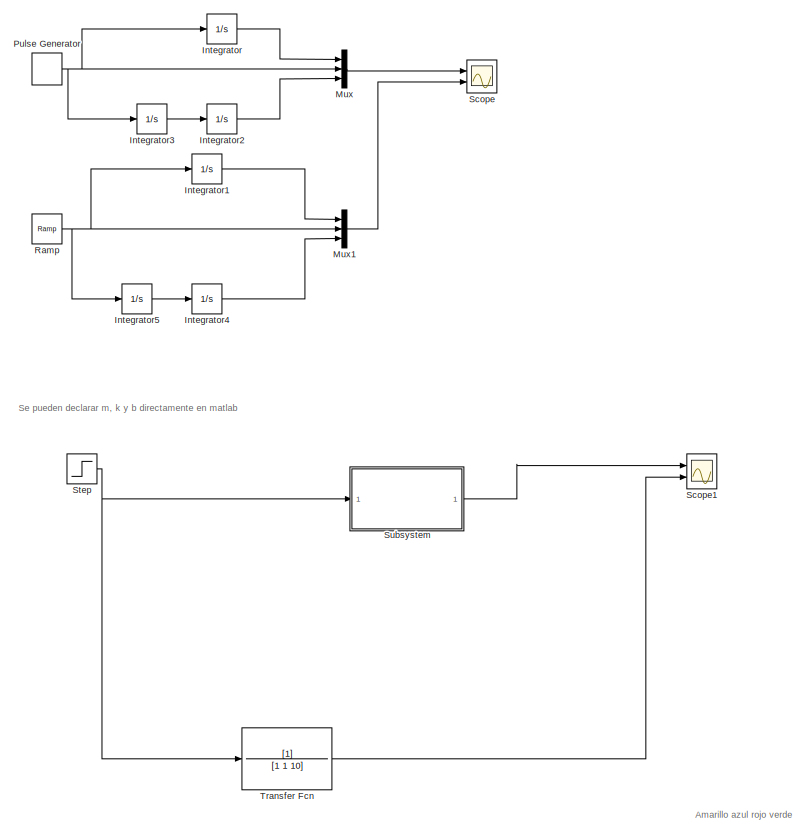
[diagram: root canvas - part 1/2, full width, top band]
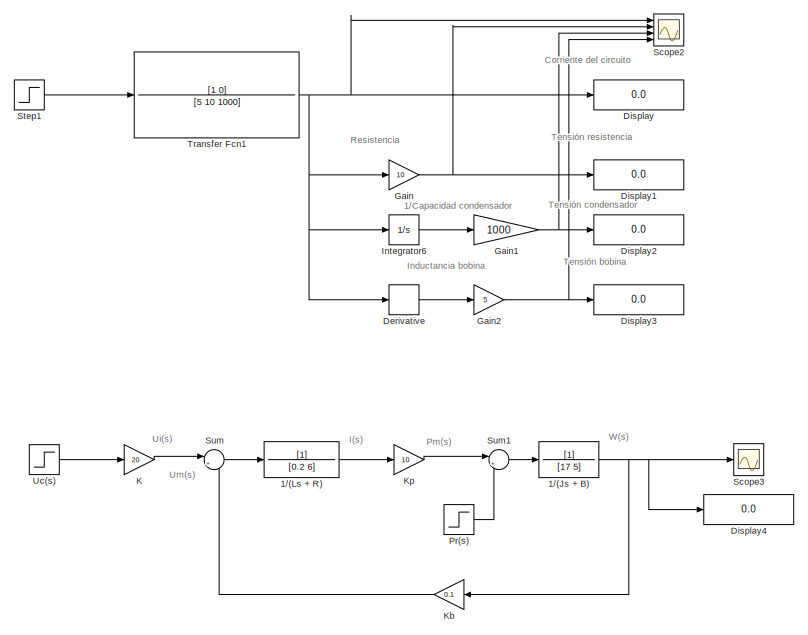
[diagram: root canvas - part 2/2, full width, bottom band]
MODEL slx_71926e811fb0
KIND model
CONFIG AbsTol = auto
CONFIG EnableMultiTasking = off
CONFIG FixedStep = 0.01
CONFIG MaxStep = auto
CONFIG MinStep = auto
CONFIG RelTol = 1e-3
CONFIG SampleTimeConstraint = Unconstrained
CONFIG SolverName = FixedStepAuto
CONFIG StartTime = 0.0
CONFIG StopTime = 50.0
BLOCK [TransferFcn] 1//(Js + B)
  Denominator = [17 5]
BLOCK [TransferFcn] 1//(Ls + R)
  Denominator = [0.2 6]
BLOCK [Derivative] Derivative
BLOCK [Display] Display
  Decimation = 1
  Ports = [1]
BLOCK [Display] Display1
  Decimation = 1
  Ports = [1]
BLOCK [Display] Display2
  Decimation = 1
  Ports = [1]
BLOCK [Display] Display3
  Decimation = 1
  Ports = [1]
BLOCK [Display] Display4
  Decimation = 1
  Ports = [1]
BLOCK [Gain] Gain
  Gain = 10
BLOCK [Gain] Gain1
  Gain = 1000
BLOCK [Gain] Gain2
  Gain = 5
BLOCK [Integrator] Integrator
  Ports = [1, 1]
BLOCK [Integrator] Integrator1
  Ports = [1, 1]
BLOCK [Integrator] Integrator2
  Ports = [1, 1]
BLOCK [Integrator] Integrator3
  Ports = [1, 1]
BLOCK [Integrator] Integrator4
  Ports = [1, 1]
BLOCK [Integrator] Integrator5
  Ports = [1, 1]
BLOCK [Integrator] Integrator6
  Ports = [1, 1]
BLOCK [Gain] K
  Gain = 20
BLOCK [Gain] Kb
  Gain = 0.1
  NameLocation = top
BLOCK [Gain] Kp
  Gain = 10
BLOCK [Mux] Mux
  DisplayOption = bar
  Inputs = 3
  Ports = [3, 1]
BLOCK [Mux] Mux1
  DisplayOption = bar
  Inputs = 3
  Ports = [3, 1]
BLOCK [Step] Pr(s)
  After = 120
  SampleTime = 0
  Time = 20
BLOCK [DiscretePulseGenerator] Pulse Generator
  Period = 10
  Ports = [0, 1]
  PulseType = Time based
  PulseWidth = 5
BLOCK [Reference] Ramp  REF=simulink/Sources/Ramp
  Ports = [0, 1]
  SourceBlock = simulink/Sources/Ramp
  SourceProductBaseCode = SL
  SourceType = Ramp
BLOCK [Scope] Scope
  Floating = off
  NumInputPorts = 2
  Ports = [2]
  ScopeSpecificationString = Simulink.scopes.TimeScopeBlockCfg('CurrentConfiguration', extmgr.ConfigurationSet(extmgr.Configuration('Core','General UI',true),extmgr.Configuration('Core','Source UI',true),extmgr.Configuration('Sources','WiredSimulink',true),extmgr.Configuration('Visuals','Time Domain',true,'SerializedDisplays',{struct('MinYLimReal','-6.86529','MaxYLimReal','28.62052','YLabelReal','','MinYLimMag','0.00000','Max...<+1476ch>
BLOCK [Scope] Scope1
  Floating = off
  NumInputPorts = 2
  Ports = [2]
  ScopeSpecificationString = Simulink.scopes.TimeScopeBlockCfg('CurrentConfiguration', extmgr.ConfigurationSet(extmgr.Configuration('Core','General UI',true),extmgr.Configuration('Core','Source UI',true),extmgr.Configuration('Sources','WiredSimulink',true,'DataLoggingVariableName','ScopeData1'),extmgr.Configuration('Visuals','Time Domain',true,'SerializedDisplays',{struct('MinYLimReal','-0.01999','MaxYLimReal','0.17994','YLab...<+1509ch>
BLOCK [Scope] Scope2
  Floating = off
  NumInputPorts = 4
  Ports = [4]
  ScopeSpecificationString = Simulink.scopes.TimeScopeBlockCfg('CurrentConfiguration', extmgr.ConfigurationSet(extmgr.Configuration('Core','General UI',true),extmgr.Configuration('Core','Source UI',true),extmgr.Configuration('Sources','WiredSimulink',true,'DataLoggingVariableName','ScopeData2'),extmgr.Configuration('Visuals','Time Domain',true,'SerializedDisplays',{struct('MinYLimReal','-1.13283','MaxYLimReal','2.12528','YLab...<+1449ch>
BLOCK [Scope] Scope3
  Floating = off
  NumInputPorts = 1
  Ports = [1]
  ScopeSpecificationString = Simulink.scopes.TimeScopeBlockCfg('CurrentConfiguration', extmgr.ConfigurationSet(extmgr.Configuration('Core','General UI',true),extmgr.Configuration('Core','Source UI',true),extmgr.Configuration('Sources','WiredSimulink',true,'DataLoggingVariableName','ScopeData3'),extmgr.Configuration('Visuals','Time Domain',true,'SerializedDisplays',{struct('MinYLimReal','-16.09176','MaxYLimReal','144.82588','Y...<+1434ch>
BLOCK [Step] Step
  SampleTime = 0
  Time = 0
BLOCK [Step] Step1
  SampleTime = 0
  Time = 0
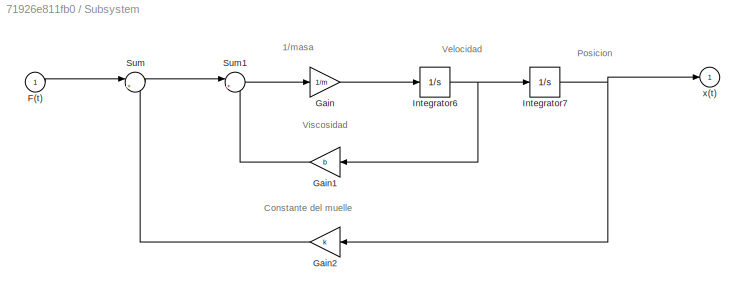
BLOCK [SubSystem] Subsystem
  Ports = [1, 1]
  RequestExecContextInheritance = off
BLOCK [Inport] Subsystem/F(t)
  IconDisplay = Signal name
BLOCK [Gain] Subsystem/Gain
  Gain = 1/m
BLOCK [Gain] Subsystem/Gain1
  Gain = b
BLOCK [Gain] Subsystem/Gain2
  Gain = k
BLOCK [Integrator] Subsystem/Integrator6
  Ports = [1, 1]
BLOCK [Integrator] Subsystem/Integrator7
  Ports = [1, 1]
BLOCK [Sum] Subsystem/Sum
  Inputs = |+-
  Ports = [2, 1]
BLOCK [Sum] Subsystem/Sum1
  Inputs = |+-
  Ports = [2, 1]
BLOCK [Outport] Subsystem/x(t)
  IconDisplay = Signal name
BLOCK [Sum] Sum
  Inputs = |+-
  Ports = [2, 1]
BLOCK [Sum] Sum1
  Inputs = |+-
  Ports = [2, 1]
BLOCK [TransferFcn] Transfer Fcn
  Denominator = [1 1 10]
BLOCK [TransferFcn] Transfer Fcn1
  Denominator = [5 10 1000]
  Numerator = [1 0]
BLOCK [Step] Uc(s)
  After = 20
  SampleTime = 0
  Time = 0
ANNOTATION (root): 1/Capacidad condensador
ANNOTATION (root): Se pueden declarar m, k y b directamente en matlab
ANNOTATION (root): Amarillo azul rojo verde
ANNOTATION (root): Corriente del circuito
ANNOTATION (root): I(s)
ANNOTATION (root): Inductancia bobina
ANNOTATION (root): Pm(s)
ANNOTATION (root): Resistencia
ANNOTATION (root): Tensión bobina
ANNOTATION (root): Tensión condensador
ANNOTATION (root): Tensión resistencia
ANNOTATION (root): Ui(s)
ANNOTATION (root): Um(s)
ANNOTATION (root): W(s)
ANNOTATION Subsystem: 1/masa
ANNOTATION Subsystem: Constante del muelle
ANNOTATION Subsystem: Posicion
ANNOTATION Subsystem: Velocidad
ANNOTATION Subsystem: Viscosidad
NET 1//(Js + B):1 -> Display4:1, Kb:1, Scope3:1
LINE 1//(Ls + R):1 -> Kp:1
LINE Derivative:1 -> Gain2:1
NET Gain1:1 -> Display2:1, Scope2:3
NET Gain2:1 -> Display3:1, Scope2:4
NET Gain:1 -> Display1:1, Scope2:2
LINE Integrator1:1 -> Mux1:1
LINE Integrator2:1 -> Mux:3
LINE Integrator3:1 -> Integrator2:1
LINE Integrator4:1 -> Mux1:3
LINE Integrator5:1 -> Integrator4:1
LINE Integrator6:1 -> Gain1:1
LINE Integrator:1 -> Mux:1
LINE K:1 -> Sum:1
LINE Kb:1 -> Sum:2
LINE Kp:1 -> Sum1:1
LINE Mux1:1 -> Scope:2
LINE Mux:1 -> Scope:1
LINE Pr(s):1 -> Sum1:2
NET Pulse Generator:1 -> Integrator3:1, Integrator:1, Mux:2
NET Ramp:1 -> Integrator1:1, Integrator5:1, Mux1:2
LINE Step1:1 -> Transfer Fcn1:1
NET Step:1 -> Subsystem:1, Transfer Fcn:1
LINE Subsystem/F(t):1 -> Subsystem/Sum:1
LINE Subsystem/Gain1:1 -> Subsystem/Sum1:2
LINE Subsystem/Gain2:1 -> Subsystem/Sum:2
LINE Subsystem/Gain:1 -> Subsystem/Integrator6:1
NET Subsystem/Integrator6:1 -> Subsystem/Gain1:1, Subsystem/Integrator7:1
NET Subsystem/Integrator7:1 -> Subsystem/Gain2:1, Subsystem/x(t):1
LINE Subsystem/Sum1:1 -> Subsystem/Gain:1
LINE Subsystem/Sum:1 -> Subsystem/Sum1:1
LINE Subsystem:1 -> Scope1:1
LINE Sum1:1 -> 1//(Js + B):1
LINE Sum:1 -> 1//(Ls + R):1
NET Transfer Fcn1:1 -> Derivative:1, Display:1, Gain:1, Integrator6:1, Scope2:1
LINE Transfer Fcn:1 -> Scope1:2
LINE Uc(s):1 -> K:1
note: NET lines group one-source signal fan-out (src -> all destinations, sorted); 1:1 wires keep LINE
